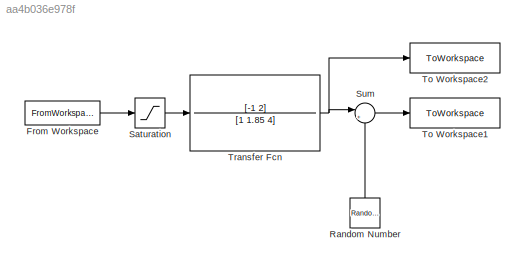
MODEL slx_aa4b036e978f
KIND model
CONFIG AbsTol = auto
CONFIG EnableMultiTasking = off
CONFIG FixedStep = auto
CONFIG MaxStep = auto
CONFIG MinStep = auto
CONFIG RelTol = 1e-3
CONFIG SampleTimeConstraint = Unconstrained
CONFIG SolverName = VariableStepAuto
CONFIG StartTime = 0.0
CONFIG StopTime = T_end
BLOCK [FromWorkspace] From Workspace
  SampleTime = Te
  VariableName = simin
BLOCK [RandomNumber] Random Number
  NameLocation = right
  SampleTime = Te
  Variance = 0.01
BLOCK [Saturate] Saturation
  LowerLimit = -u_sat
  UpperLimit = u_sat
BLOCK [Sum] Sum
  Inputs = |++
  NameLocation = top
  Ports = [2, 1]
BLOCK [ToWorkspace] To Workspace1
  FixptAsFi = on
  MaxDataPoints = inf
  Ports = [1]
  SampleTime = Te
  SaveFormat = Timeseries
  VariableName = y
BLOCK [ToWorkspace] To Workspace2
  FixptAsFi = on
  MaxDataPoints = inf
  Ports = [1]
  SampleTime = Te
  SaveFormat = Timeseries
  VariableName = y_clean
BLOCK [TransferFcn] Transfer Fcn
  Denominator = [1 1.85 4]
  Numerator = [-1 2]
LINE From Workspace:1 -> Saturation:1
LINE Random Number:1 -> Sum:2
LINE Saturation:1 -> Transfer Fcn:1
LINE Sum:1 -> To Workspace1:1
NET Transfer Fcn:1 -> Sum:1, To Workspace2:1
note: NET lines group one-source signal fan-out (src -> all destinations, sorted); 1:1 wires keep LINE
